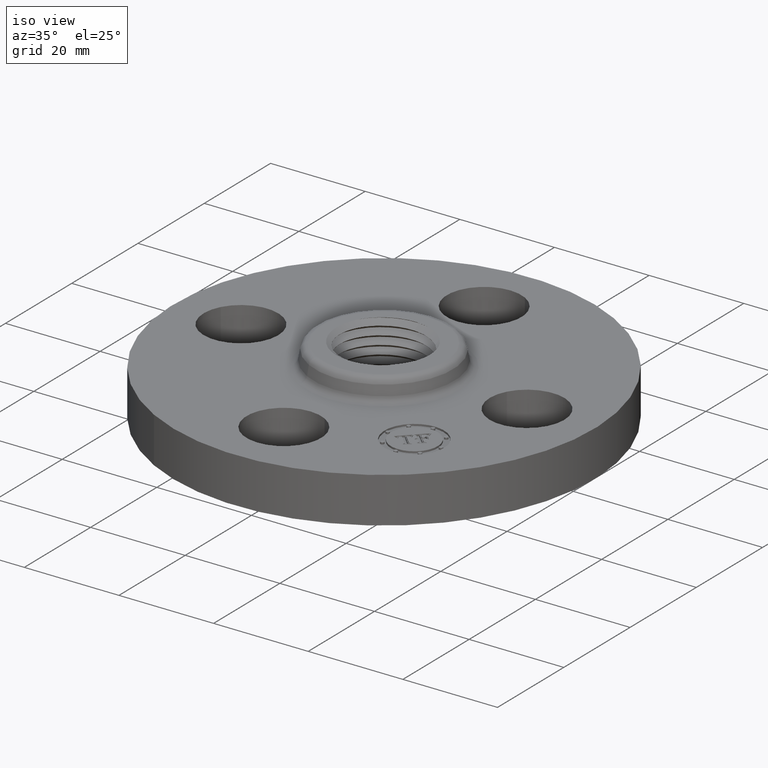
[diagram: clean part render]
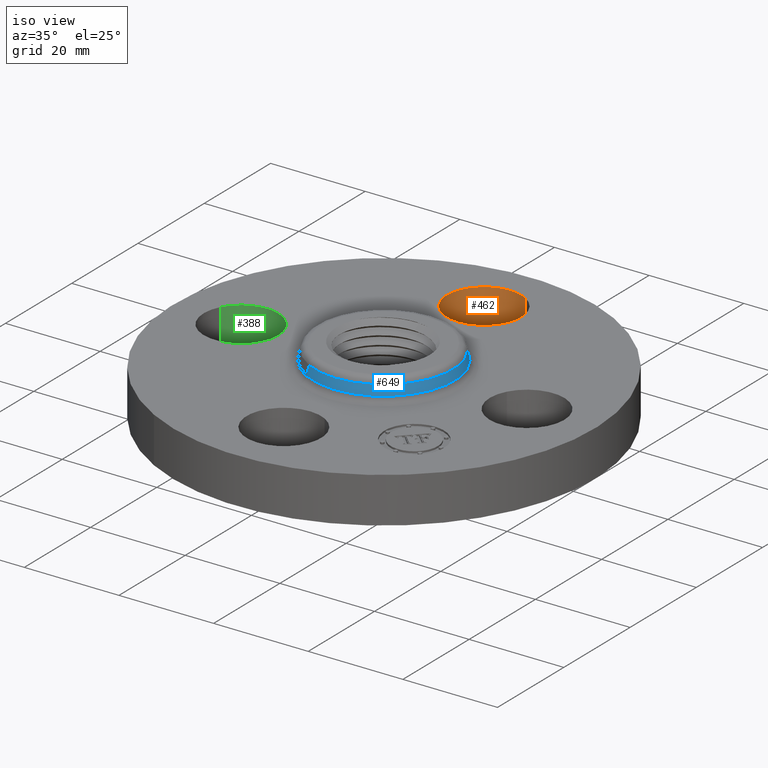
[diagram: same view with three faces highlighted in distinct colors, each labeled with its STEP entity id]
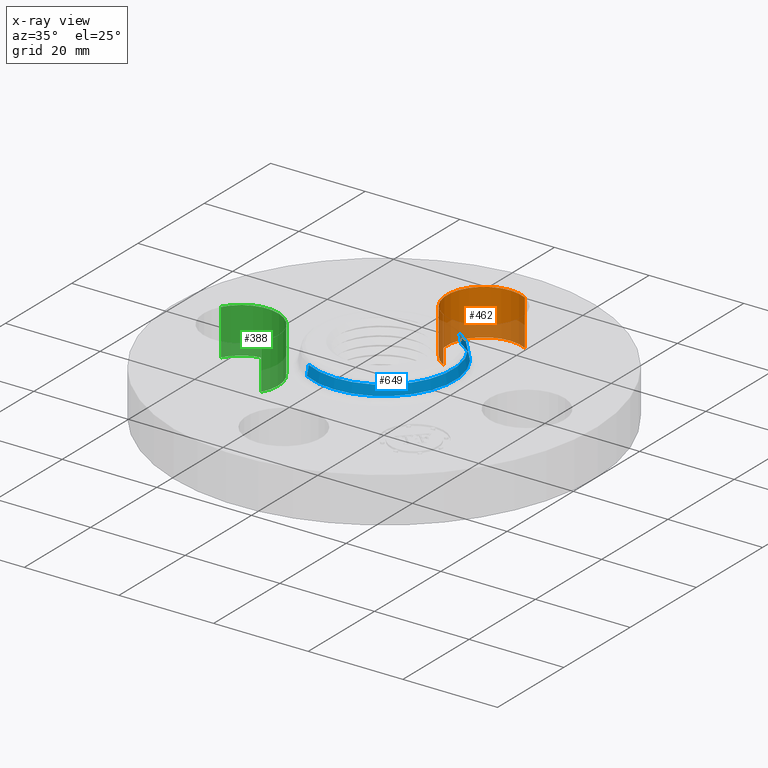
[diagram: x-ray of the same camera — body ghosted, the three highlighted faces saturated]
A machine part, iso view with three faces highlighted in distinct colors.
The next image is the same camera in x-ray (body ghosted, the three faces saturated) — at least one of them is partly hidden behind the body in this view.
Their STEP definitions:

[orange] entity #462 — the highlighted cylindrical surface (partial cylindrical patch) has radius 7.874 mm, axis along (0, 0, -1).
#409=AXIS2_PLACEMENT_3D('Cylinder Axis2P3D',#406,#407,#408) ;
#448=AXIS2_PLACEMENT_3D('Circle Axis2P3D',#446,#447,$) ;
#453=AXIS2_PLACEMENT_3D('Circle Axis2P3D',#451,#452,$) ;
#406=CARTESIAN_POINT('Axis2P3D Location',(-7.87288363731E-017,1.19,0.376062992128)) ;
#411=CARTESIAN_POINT('Line Origine',(0.148621916968,1.46205059419,0.190000000001)) ;
#415=CARTESIAN_POINT('Vertex',(0.148621916968,1.46205059419,-6.99353086378E-017)) ;
#417=CARTESIAN_POINT('Vertex',(0.148621916968,1.46205059419,0.380000000002)) ;
#424=CARTESIAN_POINT('Vertex',(-0.148621916968,0.917949405818,0.)) ;
#427=CARTESIAN_POINT('Line Origine',(-0.148621916968,0.917949405818,0.190000000001)) ;
#431=CARTESIAN_POINT('Vertex',(-0.148621916968,0.917949405818,0.380000000002)) ;
#446=CARTESIAN_POINT('Axis2P3D Location',(-7.87288363731E-017,1.19,0.)) ;
#451=CARTESIAN_POINT('Axis2P3D Location',(-7.87288363731E-017,1.19,0.380000000002)) ;
#407=DIRECTION('Axis2P3D Direction',(0.,0.,-0.0393700787402)) ;
#408=DIRECTION('Axis2P3D XDirection',(-0.0188750212049,-0.0345504945626,-0.)) ;
#412=DIRECTION('Vector Direction',(0.,0.,-0.0393700787402)) ;
#428=DIRECTION('Vector Direction',(0.,0.,-0.0393700787402)) ;
#447=DIRECTION('Axis2P3D Direction',(0.,0.,-0.0393700787402)) ;
#452=DIRECTION('Axis2P3D Direction',(0.,0.,-0.0393700787402)) ;
#413=VECTOR('Line Direction',#412,0.0393700787402) ;
#429=VECTOR('Line Direction',#428,0.0393700787402) ;
#457=ORIENTED_EDGE('',*,*,#433,.F.) ;
#458=ORIENTED_EDGE('',*,*,#450,.T.) ;
#459=ORIENTED_EDGE('',*,*,#419,.T.) ;
#460=ORIENTED_EDGE('',*,*,#455,.F.) ;
#462=ADVANCED_FACE('PartBody',(#461),#410,.F.) ;
#449=CIRCLE('generated circle',#448,0.310000000001) ;
#454=CIRCLE('generated circle',#453,0.310000000001) ;
#410=CYLINDRICAL_SURFACE('generated cylinder',#409,0.310000000001) ;
#419=EDGE_CURVE('',#416,#418,#414,.F.) ;
#433=EDGE_CURVE('',#425,#432,#430,.F.) ;
#450=EDGE_CURVE('',#425,#416,#449,.T.) ;
#455=EDGE_CURVE('',#432,#418,#454,.T.) ;
#456=EDGE_LOOP('',(#457,#458,#459,#460)) ;
#461=FACE_OUTER_BOUND('',#456,.T.) ;
#414=LINE('Line',#411,#413) ;
#430=LINE('Line',#427,#429) ;
#416=VERTEX_POINT('',#415) ;
#418=VERTEX_POINT('',#417) ;
#425=VERTEX_POINT('',#424) ;
#432=VERTEX_POINT('',#431) ;

[blue] entity #649 — the highlighted conical surface has half-angle 10 deg.
#597=AXIS2_PLACEMENT_3D('Circle Axis2P3D',#595,#596,$) ;
#610=AXIS2_PLACEMENT_3D('Cone Axis2P3D',#607,#608,#609) ;
#640=AXIS2_PLACEMENT_3D('Circle Axis2P3D',#638,#639,$) ;
#573=CARTESIAN_POINT('Vertex',(-0.274233148773,-0.501980411715,0.510418890662)) ;
#575=CARTESIAN_POINT('Vertex',(0.274233148773,0.501980411715,0.510418890662)) ;
#595=CARTESIAN_POINT('Axis2P3D Location',(0.,0.,0.510418890662)) ;
#607=CARTESIAN_POINT('Axis2P3D Location',(0.,0.,0.510418890662)) ;
#616=CARTESIAN_POINT('Vertex',(-0.281066823783,-0.514489369916,0.429581109342)) ;
#618=CARTESIAN_POINT('Vertex',(0.281066823783,0.514489369916,0.429581109342)) ;
#621=CARTESIAN_POINT('Line Origine',(-0.277649986278,-0.508234890815,0.470000000002)) ;
#626=CARTESIAN_POINT('Line Origine',(0.277649986278,0.508234890815,0.470000000002)) ;
#638=CARTESIAN_POINT('Axis2P3D Location',(0.,0.,0.429581109342)) ;
#596=DIRECTION('Axis2P3D Direction',(0.,0.,-0.0393700787402)) ;
#608=DIRECTION('Axis2P3D Direction',(0.,0.,-0.0393700787402)) ;
#609=DIRECTION('Axis2P3D XDirection',(0.0188750212049,0.0345504945626,0.)) ;
#622=DIRECTION('Vector Direction',(-0.00327761303565,-0.00599963041829,-0.03877195878)) ;
#627=DIRECTION('Vector Direction',(0.00327761303565,0.00599963041829,-0.03877195878)) ;
#639=DIRECTION('Axis2P3D Direction',(0.,0.,-0.0393700787402)) ;
#623=VECTOR('Line Direction',#622,0.0393700787402) ;
#628=VECTOR('Line Direction',#627,0.0393700787402) ;
#644=ORIENTED_EDGE('',*,*,#642,.F.) ;
#645=ORIENTED_EDGE('',*,*,#630,.T.) ;
#646=ORIENTED_EDGE('',*,*,#599,.T.) ;
#647=ORIENTED_EDGE('',*,*,#625,.F.) ;
#649=ADVANCED_FACE('PartBody',(#648),#611,.T.) ;
#598=CIRCLE('generated circle',#597,0.572003630785) ;
#641=CIRCLE('generated circle',#640,0.586257512692) ;
#611=CONICAL_SURFACE('Cone',#610,0.572003630785,0.174532925199) ;
#599=EDGE_CURVE('',#576,#574,#598,.T.) ;
#625=EDGE_CURVE('',#617,#574,#624,.F.) ;
#630=EDGE_CURVE('',#619,#576,#629,.F.) ;
#642=EDGE_CURVE('',#619,#617,#641,.T.) ;
#643=EDGE_LOOP('',(#644,#645,#646,#647)) ;
#648=FACE_OUTER_BOUND('',#643,.T.) ;
#624=LINE('Line',#621,#623) ;
#629=LINE('Line',#626,#628) ;
#574=VERTEX_POINT('',#573) ;
#576=VERTEX_POINT('',#575) ;
#617=VERTEX_POINT('',#616) ;
#619=VERTEX_POINT('',#618) ;

[green] entity #388 — the highlighted cylindrical surface (partial cylindrical patch) has radius 7.874 mm, axis along (-0, 0, -1).
#352=AXIS2_PLACEMENT_3D('Cylinder Axis2P3D',#349,#350,#351) ;
#365=AXIS2_PLACEMENT_3D('Circle Axis2P3D',#363,#364,$) ;
#379=AXIS2_PLACEMENT_3D('Circle Axis2P3D',#377,#378,$) ;
#349=CARTESIAN_POINT('Axis2P3D Location',(-1.19,-1.45732969099E-016,0.376062992128)) ;
#354=CARTESIAN_POINT('Line Origine',(-1.46205059419,0.148621916968,0.190000000001)) ;
#358=CARTESIAN_POINT('Vertex',(-1.46205059419,0.148621916968,-6.99353086378E-017)) ;
#360=CARTESIAN_POINT('Vertex',(-1.46205059419,0.148621916968,0.380000000002)) ;
#363=CARTESIAN_POINT('Axis2P3D Location',(-1.19,-1.45732969099E-016,0.)) ;
#367=CARTESIAN_POINT('Vertex',(-0.917949405818,-0.148621916968,0.)) ;
#370=CARTESIAN_POINT('Line Origine',(-0.917949405818,-0.148621916968,0.190000000001)) ;
#374=CARTESIAN_POINT('Vertex',(-0.917949405818,-0.148621916968,0.380000000002)) ;
#377=CARTESIAN_POINT('Axis2P3D Location',(-1.19,-1.45732969099E-016,0.380000000002)) ;
#350=DIRECTION('Axis2P3D Direction',(-0.,0.,-0.0393700787402)) ;
#351=DIRECTION('Axis2P3D XDirection',(0.0345504945626,-0.0188750212049,-0.)) ;
#355=DIRECTION('Vector Direction',(0.,0.,-0.0393700787402)) ;
#364=DIRECTION('Axis2P3D Direction',(-0.,0.,-0.0393700787402)) ;
#371=DIRECTION('Vector Direction',(0.,0.,-0.0393700787402)) ;
#378=DIRECTION('Axis2P3D Direction',(-0.,0.,-0.0393700787402)) ;
#356=VECTOR('Line Direction',#355,0.0393700787402) ;
#372=VECTOR('Line Direction',#371,0.0393700787402) ;
#383=ORIENTED_EDGE('',*,*,#362,.F.) ;
#384=ORIENTED_EDGE('',*,*,#369,.T.) ;
#385=ORIENTED_EDGE('',*,*,#376,.T.) ;
#386=ORIENTED_EDGE('',*,*,#381,.F.) ;
#388=ADVANCED_FACE('PartBody',(#387),#353,.F.) ;
#366=CIRCLE('generated circle',#365,0.310000000001) ;
#380=CIRCLE('generated circle',#379,0.310000000001) ;
#353=CYLINDRICAL_SURFACE('generated cylinder',#352,0.310000000001) ;
#362=EDGE_CURVE('',#359,#361,#357,.F.) ;
#369=EDGE_CURVE('',#359,#368,#366,.T.) ;
#376=EDGE_CURVE('',#368,#375,#373,.F.) ;
#381=EDGE_CURVE('',#361,#375,#380,.T.) ;
#382=EDGE_LOOP('',(#383,#384,#385,#386)) ;
#387=FACE_OUTER_BOUND('',#382,.T.) ;
#357=LINE('Line',#354,#356) ;
#373=LINE('Line',#370,#372) ;
#359=VERTEX_POINT('',#358) ;
#361=VERTEX_POINT('',#360) ;
#368=VERTEX_POINT('',#367) ;
#375=VERTEX_POINT('',#374) ;